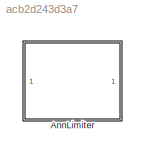
MODEL slx_acb2d243d3a7
KIND library
CONFIG AbsTol = auto
CONFIG EnableMultiTasking = off
CONFIG FixedStep = auto
CONFIG MaxStep = auto
CONFIG MinStep = auto
CONFIG RelTol = 1e-3
CONFIG SampleTimeConstraint = Unconstrained
CONFIG SolverName = VariableStepAuto
CONFIG StartTime = 0.0
CONFIG StopTime = 10.0
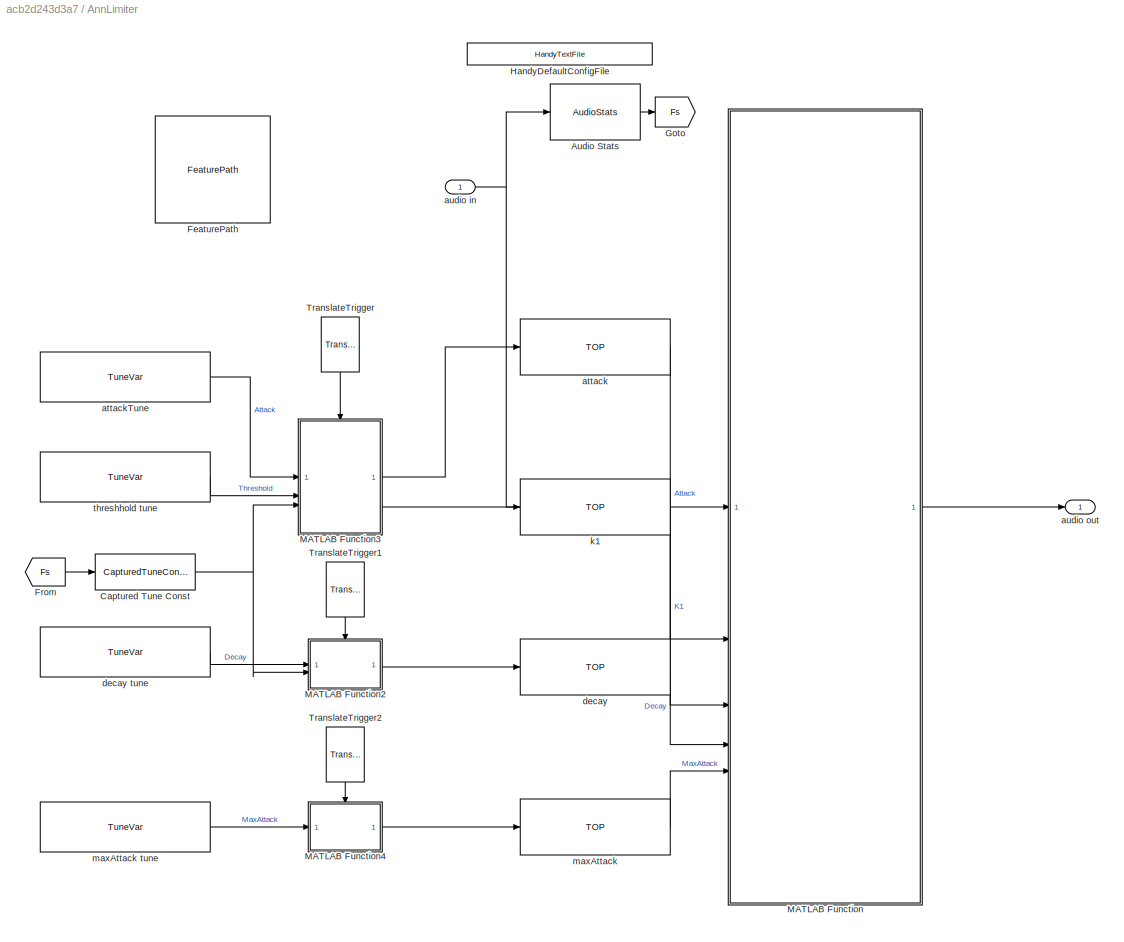
BLOCK [SubSystem] AnnLimiter
BLOCK [Reference] AnnLimiter/Audio Stats  REF=AudioStats/AudioStats
  SourceBlock = AudioStats/AudioStats
  SourceProductName = Bose Talaria
  SourceType = Talaria Audio Statistics
BLOCK [Reference] AnnLimiter/Captured Tune Const  REF=TuneVar/CapturedTuneConst
  SourceBlock = TuneVar/CapturedTuneConst
  SourceProductName = Bose Talaria
  SourceType = Talaria Captured Constant
BLOCK [Reference] AnnLimiter/FeaturePath  REF=FeaturePath/FeaturePath
  SourceBlock = FeaturePath/FeaturePath
  SourceProductName = Bose Talaria
  SourceType = Talaria Feature Path
BLOCK [From] AnnLimiter/From
  GotoTag = Fs
BLOCK [Goto] AnnLimiter/Goto
  GotoTag = Fs
BLOCK [Reference] AnnLimiter/HandyDefaultConfigFile  REF=HandyTextFile/HandyTextFile
  SourceBlock = HandyTextFile/HandyTextFile
  SourceProductName = Bose Talaria
  SourceType = Talaria Handy Text File
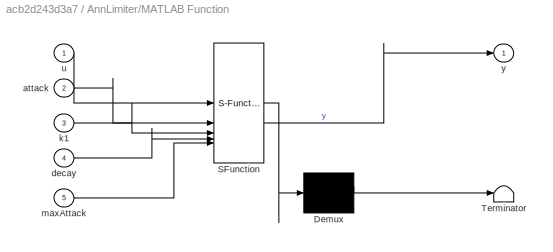
BLOCK [SubSystem] AnnLimiter/MATLAB Function
  ErrorFcn = Stateflow.Translate.translate
  PermitHierarchicalResolution = ExplicitOnly
  SFBlockType = MATLAB Function
  TreatAsAtomicUnit = on
BLOCK [Demux] AnnLimiter/MATLAB Function/ Demux 
  Outputs = 1
BLOCK [S-Function] AnnLimiter/MATLAB Function/ SFunction 
  EnableBusSupport = off
  FunctionName = sf_sfun
  PortCounts = [5 2]
  SFcnIsStateOwnerBlock = off
  SFunctionDeploymentMode = off
  Tag = Stateflow S-Function 2
BLOCK [Terminator] AnnLimiter/MATLAB Function/ Terminator 
BLOCK [Inport] AnnLimiter/MATLAB Function/attack
  Port = 2
BLOCK [Inport] AnnLimiter/MATLAB Function/decay
  Port = 4
BLOCK [Inport] AnnLimiter/MATLAB Function/k1
  Port = 3
BLOCK [Inport] AnnLimiter/MATLAB Function/maxAttack
  Port = 5
BLOCK [Inport] AnnLimiter/MATLAB Function/u
BLOCK [Outport] AnnLimiter/MATLAB Function/y
  VectorParamsAs1DForOutWhenUnconnected = off
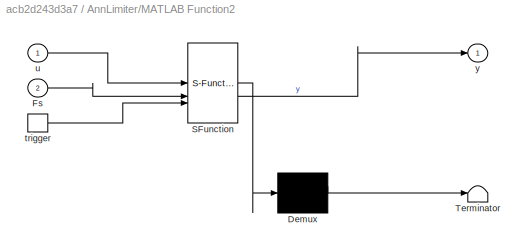
BLOCK [SubSystem] AnnLimiter/MATLAB Function2
  ErrorFcn = Stateflow.Translate.translate
  PermitHierarchicalResolution = ExplicitOnly
  SFBlockType = MATLAB Function
  TreatAsAtomicUnit = on
BLOCK [Demux] AnnLimiter/MATLAB Function2/ Demux 
  Outputs = 1
BLOCK [S-Function] AnnLimiter/MATLAB Function2/ SFunction 
  EnableBusSupport = off
  FunctionName = sf_sfun
  PortCounts = [3 2]
  SFcnIsStateOwnerBlock = off
  SFunctionDeploymentMode = off
  Tag = Stateflow S-Function 3
BLOCK [Terminator] AnnLimiter/MATLAB Function2/ Terminator 
BLOCK [Inport] AnnLimiter/MATLAB Function2/Fs
  Port = 2
BLOCK [TriggerPort] AnnLimiter/MATLAB Function2/trigger
  ShowOutputPort = on
  StatesWhenEnabling = held
  TriggerType = function-call
  VariantControl = (inherit)
BLOCK [Inport] AnnLimiter/MATLAB Function2/u
BLOCK [Outport] AnnLimiter/MATLAB Function2/y
  VectorParamsAs1DForOutWhenUnconnected = off
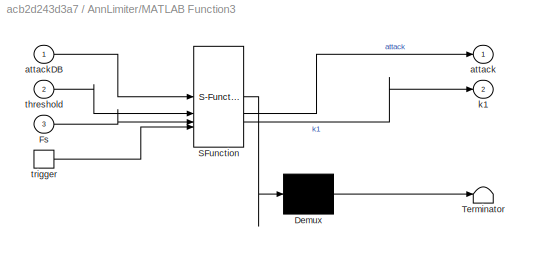
BLOCK [SubSystem] AnnLimiter/MATLAB Function3
  ErrorFcn = Stateflow.Translate.translate
  PermitHierarchicalResolution = ExplicitOnly
  SFBlockType = MATLAB Function
  TreatAsAtomicUnit = on
BLOCK [Demux] AnnLimiter/MATLAB Function3/ Demux 
  Outputs = 1
BLOCK [S-Function] AnnLimiter/MATLAB Function3/ SFunction 
  EnableBusSupport = off
  FunctionName = sf_sfun
  PortCounts = [4 3]
  SFcnIsStateOwnerBlock = off
  SFunctionDeploymentMode = off
  Tag = Stateflow S-Function 4
BLOCK [Terminator] AnnLimiter/MATLAB Function3/ Terminator 
BLOCK [Inport] AnnLimiter/MATLAB Function3/Fs
  Port = 3
BLOCK [Outport] AnnLimiter/MATLAB Function3/attack
  VectorParamsAs1DForOutWhenUnconnected = off
BLOCK [Inport] AnnLimiter/MATLAB Function3/attackDB
BLOCK [Outport] AnnLimiter/MATLAB Function3/k1
  Port = 2
  VectorParamsAs1DForOutWhenUnconnected = off
BLOCK [Inport] AnnLimiter/MATLAB Function3/threshold
  Port = 2
BLOCK [TriggerPort] AnnLimiter/MATLAB Function3/trigger
  ShowOutputPort = on
  StatesWhenEnabling = held
  TriggerType = function-call
  VariantControl = (inherit)
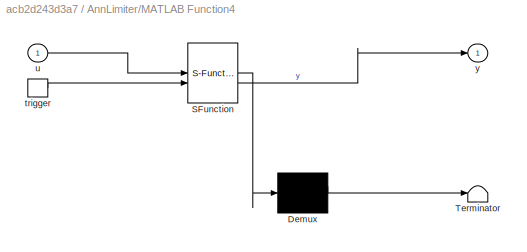
BLOCK [SubSystem] AnnLimiter/MATLAB Function4
  ErrorFcn = Stateflow.Translate.translate
  PermitHierarchicalResolution = ExplicitOnly
  SFBlockType = MATLAB Function
  TreatAsAtomicUnit = on
BLOCK [Demux] AnnLimiter/MATLAB Function4/ Demux 
  Outputs = 1
BLOCK [S-Function] AnnLimiter/MATLAB Function4/ SFunction 
  EnableBusSupport = off
  FunctionName = sf_sfun
  PortCounts = [2 2]
  SFcnIsStateOwnerBlock = off
  SFunctionDeploymentMode = off
  Tag = Stateflow S-Function 5
BLOCK [Terminator] AnnLimiter/MATLAB Function4/ Terminator 
BLOCK [TriggerPort] AnnLimiter/MATLAB Function4/trigger
  ShowOutputPort = on
  StatesWhenEnabling = held
  TriggerType = function-call
  VariantControl = (inherit)
BLOCK [Inport] AnnLimiter/MATLAB Function4/u
BLOCK [Outport] AnnLimiter/MATLAB Function4/y
  VectorParamsAs1DForOutWhenUnconnected = off
BLOCK [Reference] AnnLimiter/TranslateTrigger  REF=TuneVar/TranslateTrigger
  NameLocation = left
  SourceBlock = TuneVar/TranslateTrigger
  SourceProductName = Bose Talaria
  SourceType = Talaria Translate Trigger
BLOCK [Reference] AnnLimiter/TranslateTrigger1  REF=TuneVar/TranslateTrigger
  NameLocation = left
  SourceBlock = TuneVar/TranslateTrigger
  SourceProductName = Bose Talaria
  SourceType = Talaria Translate Trigger
BLOCK [Reference] AnnLimiter/TranslateTrigger2  REF=TuneVar/TranslateTrigger
  NameLocation = left
  SourceBlock = TuneVar/TranslateTrigger
  SourceProductName = Bose Talaria
  SourceType = Talaria Translate Trigger
BLOCK [Reference] AnnLimiter/attack  REF=TOP/TOP
  SourceBlock = TOP/TOP
  SourceProductName = Bose Talaria
  SourceType = Talaria Target Overlay Parameter
BLOCK [Reference] AnnLimiter/attackTune  REF=TuneVar/TuneVar
  SourceBlock = TuneVar/TuneVar
  SourceProductName = Bose Talaria
  SourceType = Talaria Tune Variable
BLOCK [Inport] AnnLimiter/audio in
BLOCK [Outport] AnnLimiter/audio out
  VectorParamsAs1DForOutWhenUnconnected = off
BLOCK [Reference] AnnLimiter/decay  REF=TOP/TOP
  SourceBlock = TOP/TOP
  SourceProductName = Bose Talaria
  SourceType = Talaria Target Overlay Parameter
BLOCK [Reference] AnnLimiter/decay tune  REF=TuneVar/TuneVar
  SourceBlock = TuneVar/TuneVar
  SourceProductName = Bose Talaria
  SourceType = Talaria Tune Variable
BLOCK [Reference] AnnLimiter/k1  REF=TOP/TOP
  SourceBlock = TOP/TOP
  SourceProductName = Bose Talaria
  SourceType = Talaria Target Overlay Parameter
BLOCK [Reference] AnnLimiter/maxAttack  REF=TOP/TOP
  SourceBlock = TOP/TOP
  SourceProductName = Bose Talaria
  SourceType = Talaria Target Overlay Parameter
BLOCK [Reference] AnnLimiter/maxAttack tune  REF=TuneVar/TuneVar
  SourceBlock = TuneVar/TuneVar
  SourceProductName = Bose Talaria
  SourceType = Talaria Tune Variable
BLOCK [Reference] AnnLimiter/threshhold tune  REF=TuneVar/TuneVar
  SourceBlock = TuneVar/TuneVar
  SourceProductName = Bose Talaria
  SourceType = Talaria Tune Variable
LINE AnnLimiter/Audio Stats:1 -> AnnLimiter/Goto:1
NET AnnLimiter/Captured Tune Const:1 -> AnnLimiter/MATLAB Function2:2, AnnLimiter/MATLAB Function3:3
LINE AnnLimiter/From:1 -> AnnLimiter/Captured Tune Const:1
LINE AnnLimiter/MATLAB Function2:1 -> AnnLimiter/decay:1
LINE AnnLimiter/MATLAB Function3:1 -> AnnLimiter/attack:1
LINE AnnLimiter/MATLAB Function3:2 -> AnnLimiter/k1:1
LINE AnnLimiter/MATLAB Function4:1 -> AnnLimiter/maxAttack:1
LINE AnnLimiter/MATLAB Function:1 -> AnnLimiter/audio out:1
LINE AnnLimiter/TranslateTrigger1:1 -> AnnLimiter/MATLAB Function2:trigger
LINE AnnLimiter/TranslateTrigger2:1 -> AnnLimiter/MATLAB Function4:trigger
LINE AnnLimiter/TranslateTrigger:1 -> AnnLimiter/MATLAB Function3:trigger
LINE AnnLimiter/attack:1 -> AnnLimiter/MATLAB Function:2
LINE AnnLimiter/attackTune:1 -> AnnLimiter/MATLAB Function3:1
NET AnnLimiter/audio in:1 -> AnnLimiter/Audio Stats:1, AnnLimiter/MATLAB Function:1
LINE AnnLimiter/decay tune:1 -> AnnLimiter/MATLAB Function2:1
LINE AnnLimiter/decay:1 -> AnnLimiter/MATLAB Function:4
LINE AnnLimiter/k1:1 -> AnnLimiter/MATLAB Function:3
LINE AnnLimiter/maxAttack tune:1 -> AnnLimiter/MATLAB Function4:1
LINE AnnLimiter/maxAttack:1 -> AnnLimiter/MATLAB Function:5
LINE AnnLimiter/threshhold tune:1 -> AnnLimiter/MATLAB Function3:2
note: NET lines group one-source signal fan-out (src -> all destinations, sorted); 1:1 wires keep LINE
CHART AnnLimiter/MATLAB Function states=1 transitions=1
  STATE_LABEL 'eML_blk_kernel()'
  STATE_LABEL 'SCRIPT:\nfunction y = limiter(u, attack, k1, decay, maxAttack)\n\n% Grab data from input\ny = coder.nullcopy(u);\n[frame_size, channel_count] = size(u);\n\n% Initialize memory\n% attack = single(2.5768580901e-002 * ones(1,channel_count));\n% decay = single(1.0002610981e+000 * ones(1,channel_count));\nmaxGain = single(1);\n% maxAttack = single(3.1622776602e-001 * ones(1,channel_count));\n% k1 = single(2.863175...<+683ch>'
CHART AnnLimiter/MATLAB Function2 states=1 transitions=1
  STATE_LABEL 'eML_blk_kernel()'
  STATE_LABEL 'SCRIPT:\nfunction y = fcn(u, Fs)\n% convert from dB to absolute magnitude\ny = single(undb20(abs(u.Value) / Fs));\n'
CHART AnnLimiter/MATLAB Function3 states=1 transitions=1
  STATE_LABEL 'eML_blk_kernel()'
  STATE_LABEL 'SCRIPT:\nfunction [attack, k1]= fcn(attackDB, threshold, Fs)\n% Compute the attack rate\nattack = single(1 - undb20(-abs(attackDB.Value) / Fs));\nk1 = attack ./ single(threshold.Value);\n'
CHART AnnLimiter/MATLAB Function4 states=1 transitions=1
  STATE_LABEL 'eML_blk_kernel()'
  STATE_LABEL 'SCRIPT:\nfunction y = fcn(u)\n% Convert from dB to absolute magnitude\ny = single(undb20(-abs(u.Value)));\n'
CHART  states=0 transitions=0
CHART  states=0 transitions=0
CHART  states=0 transitions=0
CHART  states=0 transitions=0
